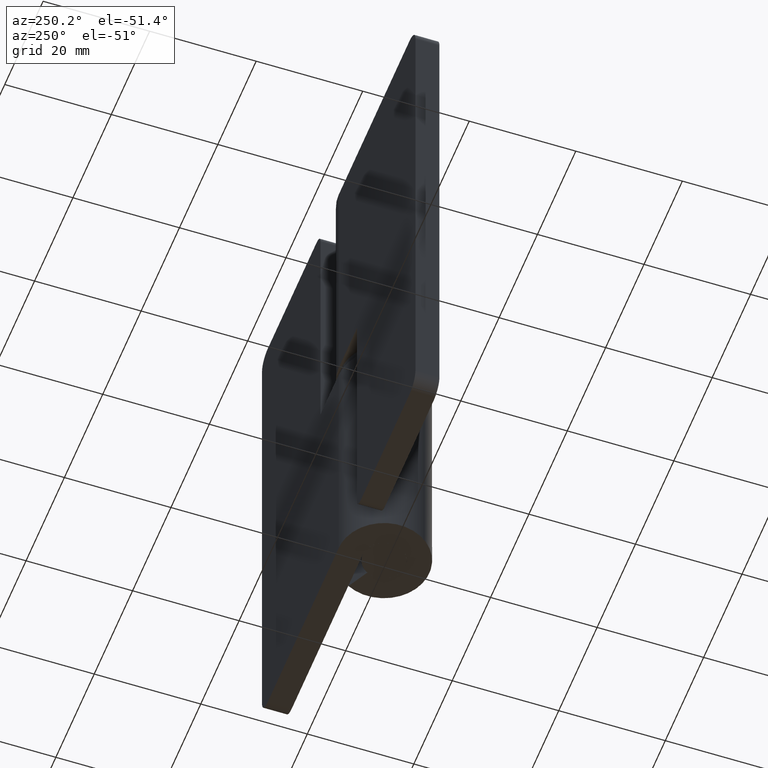
[diagram: clean part render]
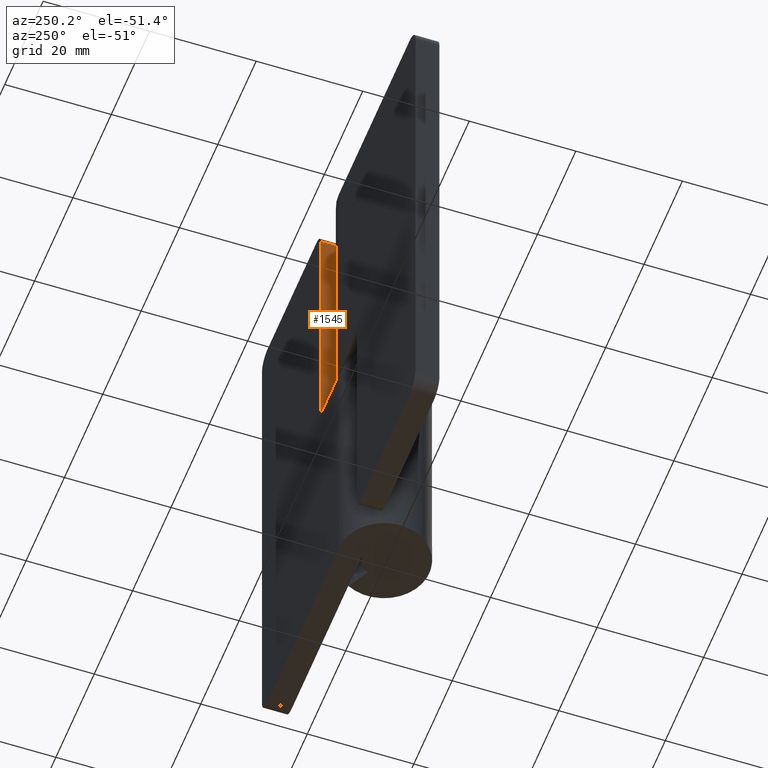
[diagram: same view with one face highlighted and labeled with its STEP entity id]
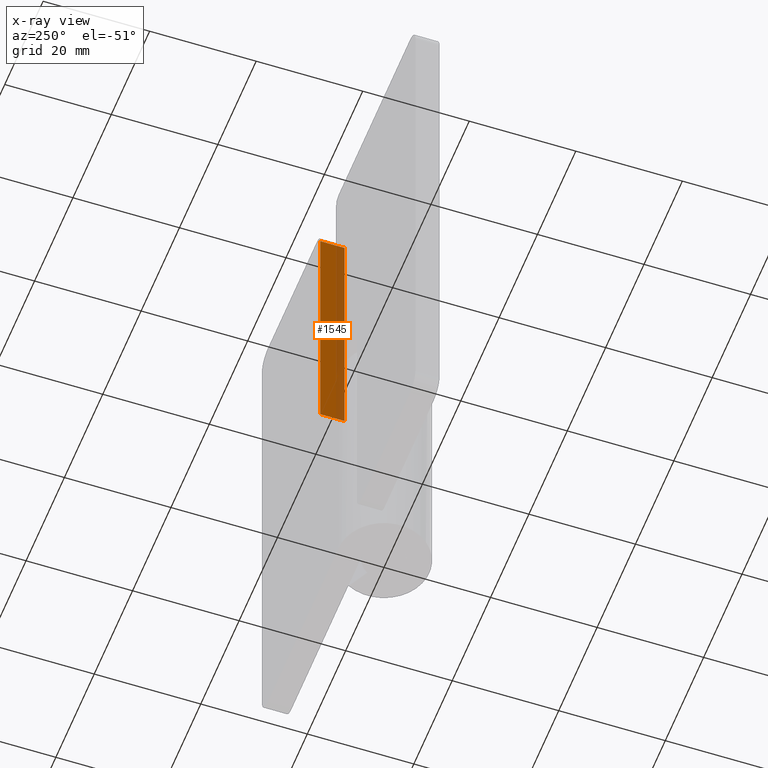
[diagram: x-ray of the same camera — body ghosted, the highlighted face saturated]
A machine part, auxiliary view. The second image highlights one B-rep face of the part: STEP entity #1545.
The next image is the same camera in x-ray: the body ghosted, the highlighted face saturated — about 34% of this face is hidden behind the body in this view.
In plain terms, the highlighted face is a freeform B-spline surface patch.
Its self-contained STEP definition (entity closure, byte-faithful):
#1473=CARTESIAN_POINT('',(9.500007999999809,4.0,98.0));
#1474=VERTEX_POINT('',#1473);
#1495=CARTESIAN_POINT('',(9.500007999999809,8.500000000000000,98.0));
#1496=VERTEX_POINT('',#1495);
#1510=CARTESIAN_POINT('',(9.500007999999809,8.500000000000000,98.0));
#1511=CARTESIAN_POINT('',(9.500007999999809,4.0,98.0));
#1512=QUASI_UNIFORM_CURVE('',1,(#1510,#1511),.UNSPECIFIED.,.F.,.U.);
#1513=EDGE_CURVE('',#1496,#1474,#1512,.T.);
#1518=CARTESIAN_POINT('',(9.500007999999809,3.775225008721873,46.552450094971512));
#1519=CARTESIAN_POINT('',(9.500007999999809,3.775225008721873,100.447551219310900));
#1520=CARTESIAN_POINT('',(9.500007999999809,8.724775111977531,46.552450094971512));
#1521=CARTESIAN_POINT('',(9.500007999999809,8.724775111977531,100.447551219310900));
#1522=B_SPLINE_SURFACE_WITH_KNOTS('',1,1,((#1518,#1520),(#1519,#1521)),.UNSPECIFIED.,.F.,.F.,.U.,(2,2),(2,2),(0.0,53.895101124339412),(0.0,4.949550103255657),.UNSPECIFIED.);
#1523=ORIENTED_EDGE('',*,*,#1513,.F.);
#1524=CARTESIAN_POINT('',(9.500007999999809,8.500000000000000,49.0));
#1525=VERTEX_POINT('',#1524);
#1526=CARTESIAN_POINT('',(9.500007999999809,8.500000000000000,98.0));
#1527=CARTESIAN_POINT('',(9.500007999999809,8.500000000000000,49.0));
#1528=QUASI_UNIFORM_CURVE('',1,(#1526,#1527),.UNSPECIFIED.,.F.,.U.);
#1529=EDGE_CURVE('',#1496,#1525,#1528,.T.);
#1530=ORIENTED_EDGE('',*,*,#1529,.T.);
#1531=CARTESIAN_POINT('',(9.500007999999809,4.0,49.0));
#1532=VERTEX_POINT('',#1531);
#1533=CARTESIAN_POINT('',(9.500007999999809,8.500000000000000,49.0));
#1534=CARTESIAN_POINT('',(9.500007999999809,4.0,49.0));
#1535=QUASI_UNIFORM_CURVE('',1,(#1533,#1534),.UNSPECIFIED.,.F.,.U.);
#1536=EDGE_CURVE('',#1525,#1532,#1535,.T.);
#1537=ORIENTED_EDGE('',*,*,#1536,.T.);
#1538=CARTESIAN_POINT('',(9.500007999999809,4.0,49.0));
#1539=CARTESIAN_POINT('',(9.500007999999809,4.0,98.0));
#1540=QUASI_UNIFORM_CURVE('',1,(#1538,#1539),.UNSPECIFIED.,.F.,.U.);
#1541=EDGE_CURVE('',#1532,#1474,#1540,.T.);
#1542=ORIENTED_EDGE('',*,*,#1541,.T.);
#1543=EDGE_LOOP('',(#1523,#1530,#1537,#1542));
#1544=FACE_OUTER_BOUND('',#1543,.T.);
#1545=ADVANCED_FACE('',(#1544),#1522,.T.);